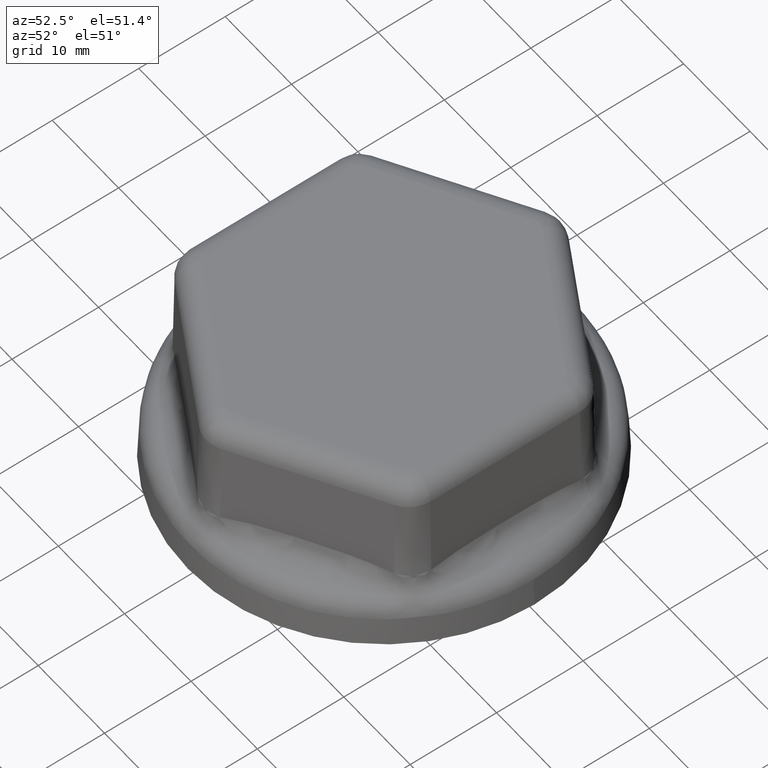
[diagram: clean part render]
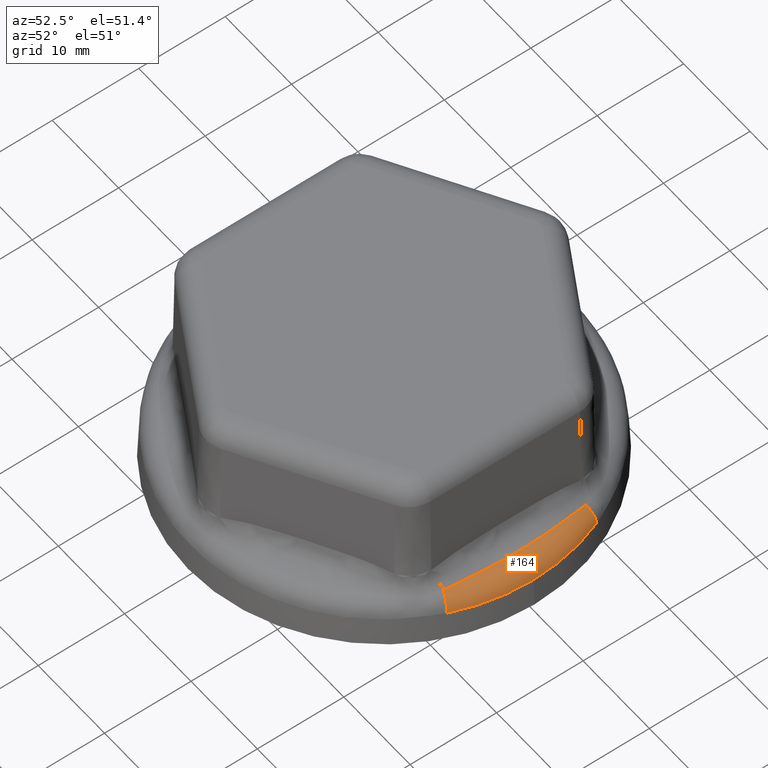
[diagram: same view with one face highlighted and labeled with its STEP entity id]
A machine part, auxiliary view. The second image highlights one B-rep face of the part: STEP entity #164.
In plain terms, the highlighted toroidal blend (fillet) surface has major radius 19.9966 mm and minor (blend) radius 2.5 mm.
Its self-contained STEP definition (entity closure, byte-faithful):
#164 = ADVANCED_FACE( '', ( #387 ), #388, .T. );
#387 = FACE_OUTER_BOUND( '', #4016, .T. );
#388 = TOROIDAL_SURFACE( '', #4017, 19.9965691350052, 2.50000000000000 );
#4016 = EDGE_LOOP( '', ( #6296, #6297, #6298, #6299, #6300, #6301 ) );
#4017 = AXIS2_PLACEMENT_3D( '', #6302, #6303, #6304 );
#6296 = ORIENTED_EDGE( '', *, *, #6765, .T. );
#6297 = ORIENTED_EDGE( '', *, *, #6758, .T. );
#6298 = ORIENTED_EDGE( '', *, *, #6756, .T. );
#6299 = ORIENTED_EDGE( '', *, *, #6676, .F. );
#6300 = ORIENTED_EDGE( '', *, *, #6766, .F. );
#6301 = ORIENTED_EDGE( '', *, *, #6767, .T. );
#6302 = CARTESIAN_POINT( '', ( 0.000000000000000, 0.000000000000000, 3.30000000000000 ) );
#6303 = DIRECTION( '', ( 0.000000000000000, 0.000000000000000, 1.00000000000000 ) );
#6304 = DIRECTION( '', ( 1.00000000000000, 0.000000000000000, 0.000000000000000 ) );
#6676 = EDGE_CURVE( '', #7096, #7098, #7099, .T. );
#6756 = EDGE_CURVE( '', #7217, #7098, #7223, .F. );
#6758 = EDGE_CURVE( '', #7224, #7217, #7226, .T. );
#6765 = EDGE_CURVE( '', #7236, #7224, #7237, .T. );
#6766 = EDGE_CURVE( '', #7238, #7096, #7239, .T. );
#6767 = EDGE_CURVE( '', #7238, #7236, #7240, .T. );
#7096 = VERTEX_POINT( '', #8464 );
#7098 = VERTEX_POINT( '', #8473 );
#7099 = CIRCLE( '', #8474, 22.4931429718916 );
#7217 = VERTEX_POINT( '', #9249 );
#7223 = CIRCLE( '', #9263, 2.50000000000000 );
#7224 = VERTEX_POINT( '', #9264 );
#7226 = B_SPLINE_CURVE_WITH_KNOTS( '', 3, ( #9266, #9267, #9268, #9269 ), .UNSPECIFIED., .F., .F., ( 4, 4 ), ( 0.000000000000000, 5.87313703501809E-005 ), .UNSPECIFIED. );
#7236 = VERTEX_POINT( '', #9370 );
#7237 = B_SPLINE_CURVE_WITH_KNOTS( '', 3, ( #9371, #9372, #9373, #9374, #9375, #9376, #9377, #9378, #9379, #9380, #9381, #9382, #9383, #9384, #9385, #9386, #9387, #9388, #9389, #9390, #9391, #9392, #9393, #9394, #9395, #9396, #9397, #9398, #9399, #9400, #9401, #9402, #9403, #9404, #9405, #9406, #9407, #9408, #9409, #9410, #9411, #9412 ), .UNSPECIFIED., .F., .F., ( 4, 2, 2, 1, 1, 1, 2, 2, 2, 2, 1, 2, 2, 1, 2, 2, 2, 2, 2, 1, 1, 1, 2, 2, 4 ), ( 0.000000000000000, 0.000512114790756327, 0.00102422958151265, 0.00153634437226898, 0.00204845916302531, 0.00256057395378163, 0.00307268874453796, 0.00409691832605061, 0.00512114790756327, 0.00614537748907592, 0.00716960707058857, 0.00819383665210122, 0.00844989404747938, 0.00870595144285755, 0.00921806623361387, 0.0102422958151265, 0.0112665253966392, 0.0122907549781518, 0.0133149845596645, 0.0138270993504208, 0.0143392141411771, 0.0148513289319335, 0.0153634437226898, 0.0158755585134461, 0.0163876733042024 ), .UNSPECIFIED. );
#7238 = VERTEX_POINT( '', #9413 );
#7239 = CIRCLE( '', #9414, 2.50000000000000 );
#7240 = B_SPLINE_CURVE_WITH_KNOTS( '', 3, ( #9415, #9416, #9417, #9418 ), .UNSPECIFIED., .F., .F., ( 4, 4 ), ( 0.000000000000000, 5.87313705897544E-005 ), .UNSPECIFIED. );
#8464 = CARTESIAN_POINT( '', ( 20.7606411879791, 8.65663088146566, 3.43083989060736 ) );
#8473 = CARTESIAN_POINT( '', ( 20.7606411879791, -8.65663088146568, 3.43083989060736 ) );
#8474 = AXIS2_PLACEMENT_3D( '', #10003, #10004, #10005 );
#9249 = CARTESIAN_POINT( '', ( 19.6913267823676, -8.21075543755248, 5.41179836526538 ) );
#9263 = AXIS2_PLACEMENT_3D( '', #10104, #10105, #10106 );
#9264 = CARTESIAN_POINT( '', ( 19.7015955698749, -8.15346609076693, 5.41966326267246 ) );
#9266 = CARTESIAN_POINT( '', ( 19.7015955698749, -8.15346609076693, 5.41966326267246 ) );
#9267 = CARTESIAN_POINT( '', ( 19.6982460028600, -8.17257401458808, 5.41702943026432 ) );
#9268 = CARTESIAN_POINT( '', ( 19.6948229898073, -8.19167041526674, 5.41440755585702 ) );
#9269 = CARTESIAN_POINT( '', ( 19.6913267823676, -8.21075543755248, 5.41179836526538 ) );
#9370 = CARTESIAN_POINT( '', ( 19.7015955699159, 8.15346609053314, 5.41966326270468 ) );
#9371 = CARTESIAN_POINT( '', ( 19.7015955699159, 8.15346609053314, 5.41966326270468 ) );
#9372 = CARTESIAN_POINT( '', ( 19.7310337895056, 7.98553296300334, 5.44281113172589 ) );
#9373 = CARTESIAN_POINT( '', ( 19.7597985857075, 7.81745182583980, 5.46382405215508 ) );
#9374 = CARTESIAN_POINT( '', ( 19.8158874450199, 7.48101527968854, 5.50232397179206 ) );
#9375 = CARTESIAN_POINT( '', ( 19.8432115596852, 7.31265980167128, 5.51980915943981 ) );
#9376 = CARTESIAN_POINT( '', ( 19.8963341936232, 6.97569063490623, 5.55183770156621 ) );
#9377 = CARTESIAN_POINT( '', ( 19.9479312757188, 6.63846319885688, 5.58092287428584 ) );
#9378 = CARTESIAN_POINT( '', ( 20.0205185213426, 6.13188398425183, 5.61714071056795 ) );
#9379 = CARTESIAN_POINT( '', ( 20.0880861832249, 5.62459509395473, 5.64711750862510 ) );
#9380 = CARTESIAN_POINT( '', ( 20.1296566623714, 5.28594413919134, 5.66359014940703 ) );
#9381 = CARTESIAN_POINT( '', ( 20.1893189968808, 4.77763265460626, 5.68607451328447 ) );
#9382 = CARTESIAN_POINT( '', ( 20.2255000913626, 4.43831205633034, 5.69811513617635 ) );
#9383 = CARTESIAN_POINT( '', ( 20.2902740636227, 3.75881092155234, 5.71799391998002 ) );
#9384 = CARTESIAN_POINT( '', ( 20.3188671413687, 3.41863021522303, 5.72582746088827 ) );
#9385 = CARTESIAN_POINT( '', ( 20.3681463540937, 2.73742813460129, 5.73847687390747 ) );
#9386 = CARTESIAN_POINT( '', ( 20.3888326212282, 2.39640666925208, 5.74329021325140 ) );
#9387 = CARTESIAN_POINT( '', ( 20.4220559074408, 1.71353331870717, 5.75069175891801 ) );
#9388 = CARTESIAN_POINT( '', ( 20.4471300756957, 1.02982947301128, 5.75586603052683 ) );
#9389 = CARTESIAN_POINT( '', ( 20.4555678721996, 0.344471076090395, 5.75749850831285 ) );
#9390 = CARTESIAN_POINT( '', ( 20.4555819322954, -0.0843968473875670, 5.75750127345315 ) );
#9391 = CARTESIAN_POINT( '', ( 20.4553217841329, -0.170212878690453, 5.75745016403935 ) );
#9392 = CARTESIAN_POINT( '', ( 20.4542760359411, -0.341775345819652, 5.75724408506718 ) );
#9393 = CARTESIAN_POINT( '', ( 20.4519196357431, -0.599038290689070, 5.75677893713316 ) );
#9394 = CARTESIAN_POINT( '', ( 20.4472057673423, -0.856059303339868, 5.75584055792057 ) );
#9395 = CARTESIAN_POINT( '', ( 20.4346567006563, -1.36977909035440, 5.75329183187492 ) );
#9396 = CARTESIAN_POINT( '', ( 20.4221266154452, -1.71182951131879, 5.75070685584275 ) );
#9397 = CARTESIAN_POINT( '', ( 20.3889098659104, -2.39506833579551, 5.74330807458873 ) );
#9398 = CARTESIAN_POINT( '', ( 20.3682231269360, -2.73625678654268, 5.73849555536545 ) );
#9399 = CARTESIAN_POINT( '', ( 20.3189379491935, -3.41776118011608, 5.72584665864209 ) );
#9400 = CARTESIAN_POINT( '', ( 20.2903393789649, -3.75807721705210, 5.71801280480084 ) );
#9401 = CARTESIAN_POINT( '', ( 20.2255519127069, -4.43781686921481, 5.69813219788526 ) );
#9402 = CARTESIAN_POINT( '', ( 20.1893628169116, -4.77724066008211, 5.68609005309547 ) );
#9403 = CARTESIAN_POINT( '', ( 20.1296885105092, -5.28568211484655, 5.66360263815605 ) );
#9404 = CARTESIAN_POINT( '', ( 20.0881100727577, -5.62441142097920, 5.64712734795367 ) );
#9405 = CARTESIAN_POINT( '', ( 20.0205314576510, -6.13179246579957, 5.61714646249978 ) );
#9406 = CARTESIAN_POINT( '', ( 19.9479352381112, -6.63843773421259, 5.58092437364119 ) );
#9407 = CARTESIAN_POINT( '', ( 19.8963341280653, -6.97569122555632, 5.55183769782273 ) );
#9408 = CARTESIAN_POINT( '', ( 19.8432088202886, -7.31267700348319, 5.51980747202599 ) );
#9409 = CARTESIAN_POINT( '', ( 19.8158840343339, -7.48103608091607, 5.50232172889946 ) );
#9410 = CARTESIAN_POINT( '', ( 19.7597955200203, -7.81746987165674, 5.46382184959293 ) );
#9411 = CARTESIAN_POINT( '', ( 19.7310317397033, -7.98554465629940, 5.44280951992629 ) );
#9412 = CARTESIAN_POINT( '', ( 19.7015955698749, -8.15346609076693, 5.41966326267246 ) );
#9413 = CARTESIAN_POINT( '', ( 19.6913267823677, 8.21075543755253, 5.41179836526527 ) );
#9414 = AXIS2_PLACEMENT_3D( '', #10119, #10120, #10121 );
#9415 = CARTESIAN_POINT( '', ( 19.6913267823677, 8.21075543755253, 5.41179836526527 ) );
#9416 = CARTESIAN_POINT( '', ( 19.6948229898217, 8.19167041518894, 5.41440755586758 ) );
#9417 = CARTESIAN_POINT( '', ( 19.6982460028875, 8.17257401443229, 5.41702943028596 ) );
#9418 = CARTESIAN_POINT( '', ( 19.7015955699159, 8.15346609053314, 5.41966326270468 ) );
#10003 = CARTESIAN_POINT( '', ( 0.000000000000000, 0.000000000000000, 3.43083989060736 ) );
#10004 = DIRECTION( '', ( 0.000000000000000, 0.000000000000000, -1.00000000000000 ) );
#10005 = DIRECTION( '', ( -1.00000000000000, 0.000000000000000, 0.000000000000000 ) );
#10104 = CARTESIAN_POINT( '', ( 18.4563623376794, -7.69580836763301, 3.30000000000000 ) );
#10105 = DIRECTION( '', ( -0.384856437905692, -0.922976447263169, 1.39507050313479E-016 ) );
#10106 = DIRECTION( '', ( 0.922976447263169, -0.384856437905692, 0.000000000000000 ) );
#10119 = CARTESIAN_POINT( '', ( 18.4563623376795, 7.69580836763300, 3.30000000000000 ) );
#10120 = DIRECTION( '', ( -0.384856437905692, 0.922976447263169, 0.000000000000000 ) );
#10121 = DIRECTION( '', ( -0.922976447263169, -0.384856437905692, 0.000000000000000 ) );